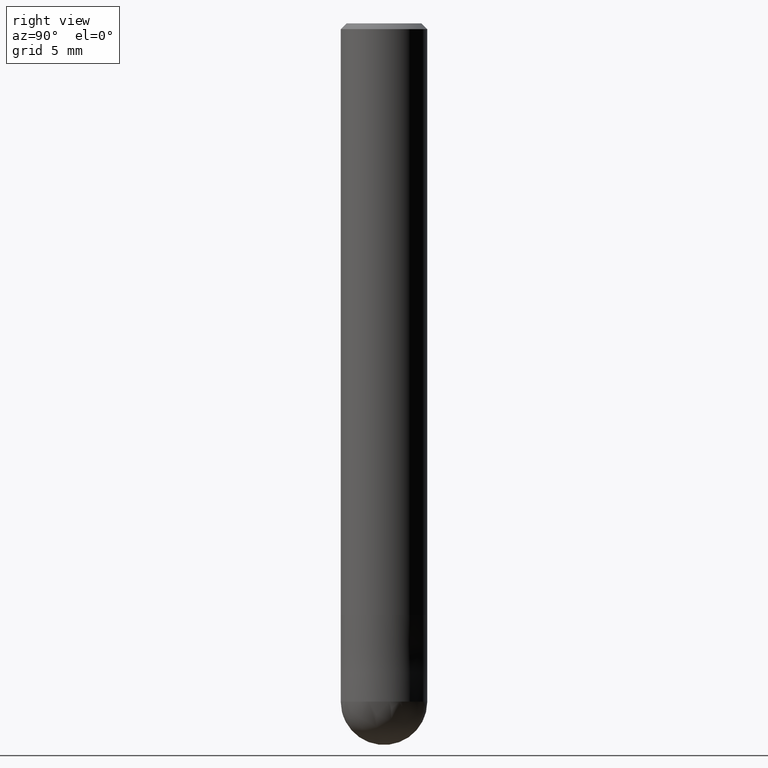
[diagram: clean part render]
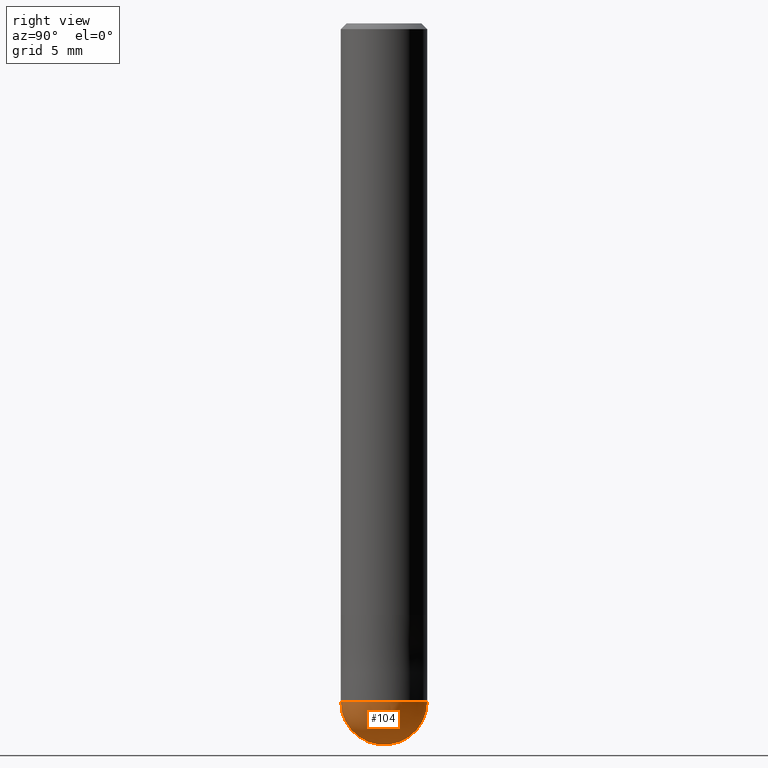
[diagram: same view with one face highlighted and labeled with its STEP entity id]
A machine part, right view. The second image highlights one B-rep face of the part: STEP entity #104.
In plain terms, the highlighted spherical surface has radius 3 mm.
Its self-contained STEP definition (entity closure, byte-faithful):
#62=VERTEX_POINT('',#154);
#76=EDGE_CURVE('',#114,#62,#172,.T.);
#104=ADVANCED_FACE('',(#202),#203,.T.);
#114=VERTEX_POINT('',#215);
#124=EDGE_CURVE('',#62,#114,#226,.T.);
#154=CARTESIAN_POINT('',(3.67381906146713E-016,-3.0,-47.0));
#172=CIRCLE('',#271,3.0);
#202=FACE_OUTER_BOUND('',#306,.T.);
#203=SPHERICAL_SURFACE('',#307,3.00000000000001);
#215=CARTESIAN_POINT('',(0.0,3.0,-47.0));
#226=CIRCLE('',#335,3.00000000000001);
#271=AXIS2_PLACEMENT_3D('',#383,#384,#385);
#306=EDGE_LOOP('',(#411,#412));
#307=AXIS2_PLACEMENT_3D('',#413,#414,#415);
#335=AXIS2_PLACEMENT_3D('',#451,#452,#453);
#383=CARTESIAN_POINT('',(0.0,0.0,-47.0));
#384=DIRECTION('',(0.0,0.0,-1.0));
#385=DIRECTION('',(0.0,1.0,0.0));
#411=ORIENTED_EDGE('',*,*,#124,.T.);
#412=ORIENTED_EDGE('',*,*,#76,.T.);
#413=CARTESIAN_POINT('',(0.0,0.0,-47.0));
#414=DIRECTION('',(0.0,1.0,0.0));
#415=DIRECTION('',(0.0,0.0,-1.0));
#451=CARTESIAN_POINT('',(0.0,0.0,-47.0));
#452=DIRECTION('',(1.0,0.0,1.22460635382238E-016));
#453=DIRECTION('',(-1.22460635382238E-016,0.0,1.0));